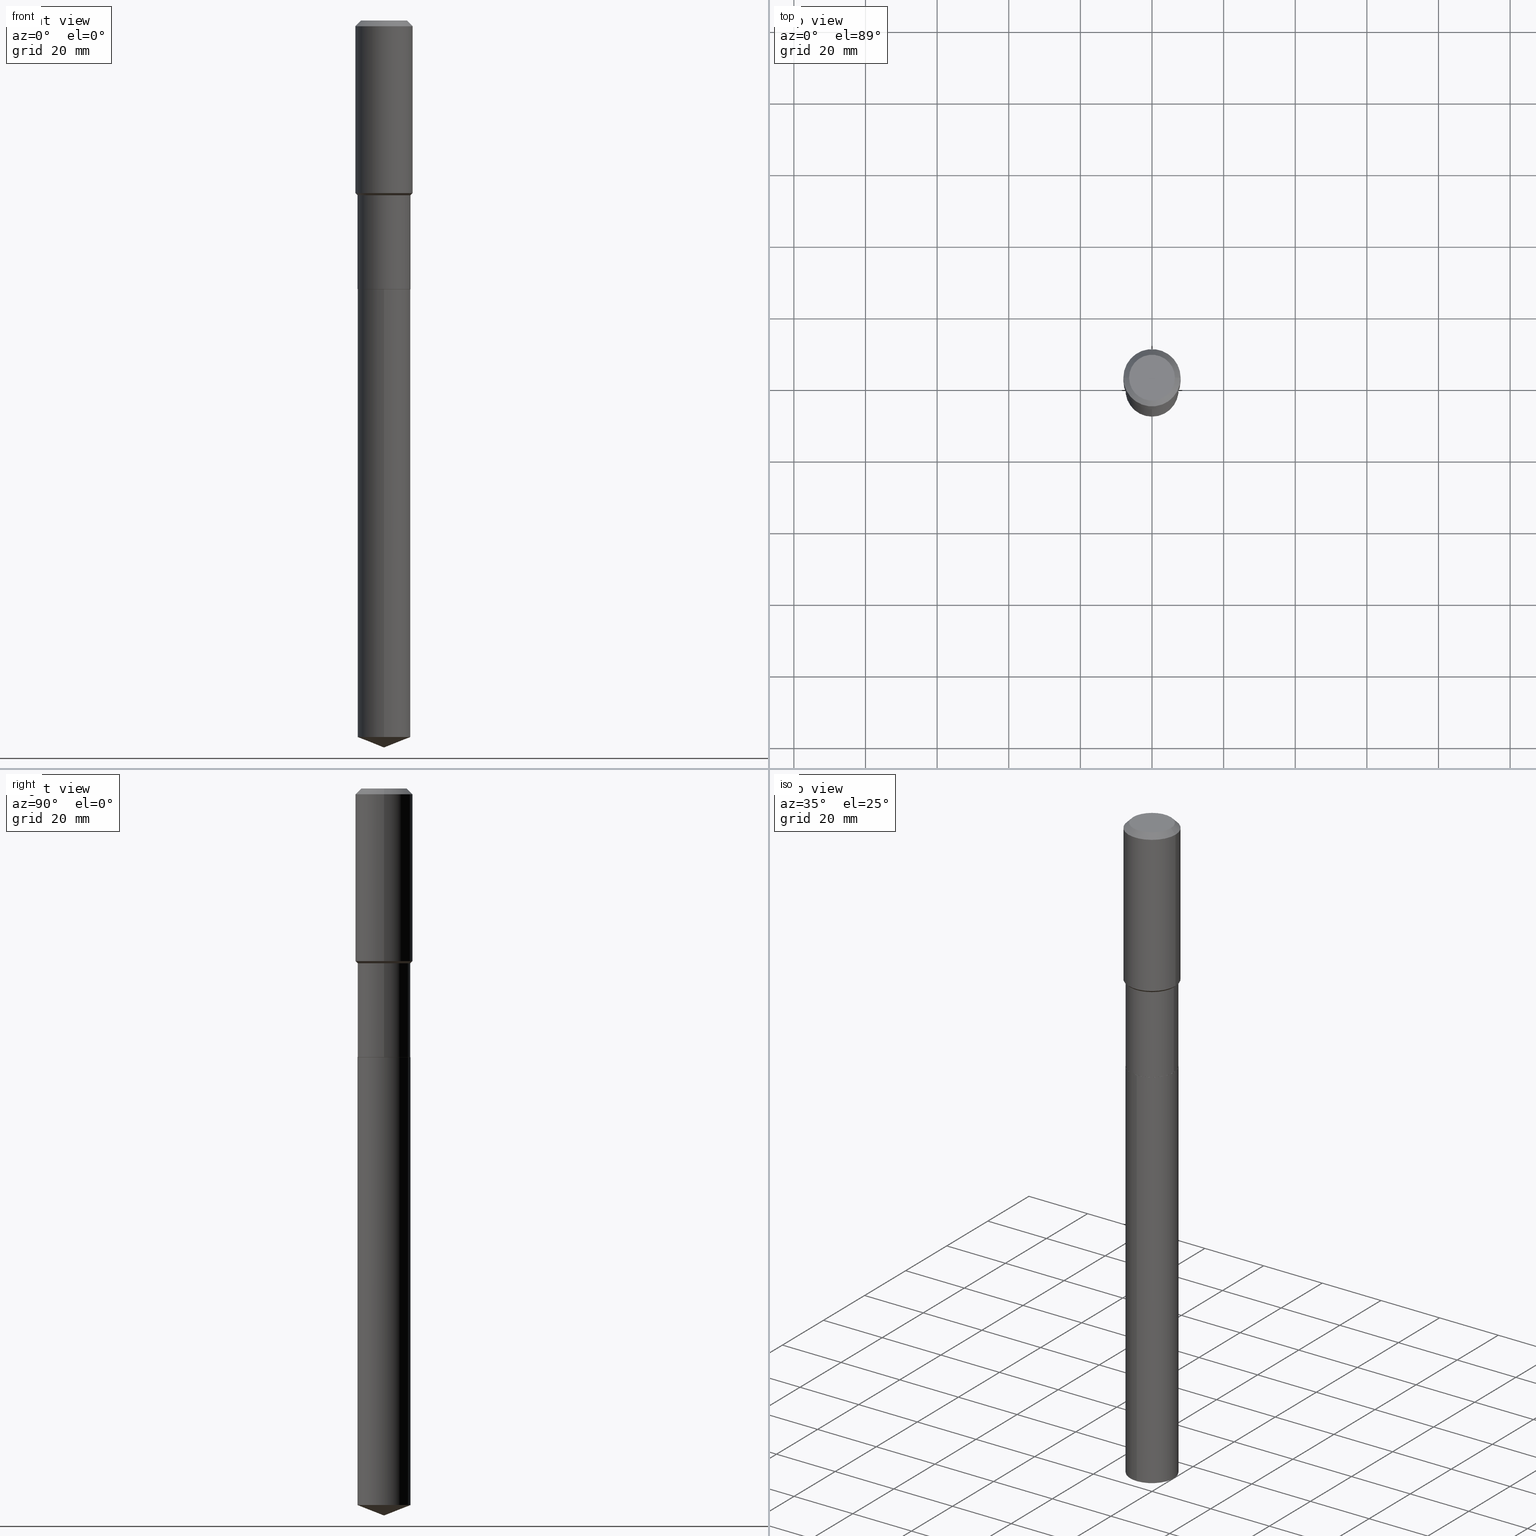
[diagram: canonical four-view strip — front | top / right | iso, engineering-drawing reading convention]
A machine part, canonical four-view strip (front | top / right | iso — engineering-drawing reading convention). The complete STEP part file that produces these views, byte-faithful:
ISO-10303-21;
HEADER;
FILE_DESCRIPTION (( 'STEP AP203' ),
    '1' );
FILE_NAME ('66704.STEP',
    '2024-04-25T04:06:00',
    ( '' ),
    ( '' ),
    'SwSTEP 2.0',
    'SolidWorks 2023',
    '' );
FILE_SCHEMA (( 'CONFIG_CONTROL_DESIGN' ));
ENDSEC;

DATA;
#1 = CYLINDRICAL_SURFACE ( 'NONE', #186, 0.3149500000000001743 ) ;
#2 = ORIENTED_EDGE ( 'NONE', *, *, #248, .F. ) ;
#3 = LINE ( 'NONE', #178, #341 ) ;
#4 = CLOSED_SHELL ( 'NONE', ( #244, #441, #363, #160, #337 ) ) ;
#5 = CONICAL_SURFACE ( 'NONE', #156, 0.3149500000000000077, 0.7853981633974452814 ) ;
#6 = LINE ( 'NONE', #376, #258 ) ;
#7 = EDGE_CURVE ( 'NONE', #151, #88, #171, .T. ) ;
#8 = DIRECTION ( 'NONE',  ( -2.445468806185136597E-29, 3.491481338843145583E-15, 1.000000000000000000 ) ) ;
#9 = ORIENTED_EDGE ( 'NONE', *, *, #306, .F. ) ;
#10 = ADVANCED_FACE ( 'NONE', ( #257 ), #154, .T. ) ;
#11 = ORIENTED_EDGE ( 'NONE', *, *, #400, .F. ) ;
#12 = VERTEX_POINT ( 'NONE', #334 ) ;
#13 = LENGTH_MEASURE_WITH_UNIT ( LENGTH_MEASURE( 0.02539999999999999897 ), #202 );
#14 = ORIENTED_EDGE ( 'NONE', *, *, #288, .F. ) ;
#15 = EDGE_CURVE ( 'NONE', #418, #174, #483, .T. ) ;
#16 = DATE_AND_TIME ( #57, #475 ) ;
#17 = CIRCLE ( 'NONE', #373, 0.2913499999999999979 ) ;
#18 = CARTESIAN_POINT ( 'NONE',  ( -2.034486176143821442E-15, -0.2913500000000103229, -2.952699999999999214 ) ) ;
#19 = CIRCLE ( 'NONE', #194, 0.2913499999999999979 ) ;
#20 = ORIENTED_EDGE ( 'NONE', *, *, #224, .T. ) ;
#21 = CARTESIAN_POINT ( 'NONE',  ( 0.000000000000000000, 0.000000000000000000, 0.000000000000000000 ) ) ;
#22 = DIRECTION ( 'NONE',  ( 1.000000000000000000, -6.982962677686269077E-15, 0.000000000000000000 ) ) ;
#23 = ADVANCED_BREP_SHAPE_REPRESENTATION ( '66704', ( #410, #81, #264 ), #30 ) ;
#24 =( NAMED_UNIT ( * ) PLANE_ANGLE_UNIT ( ) SI_UNIT ( $, .RADIAN. ) );
#25 = DIRECTION ( 'NONE',  ( -2.445468806185136597E-29, 3.491481338843145583E-15, 1.000000000000000000 ) ) ;
#26 = CALENDAR_DATE ( 2024, 25, 4 ) ;
#27 = EDGE_CURVE ( 'NONE', #308, #192, #412, .T. ) ;
#28 = DIRECTION ( 'NONE',  ( -2.445468806185136597E-29, 3.491481338843145583E-15, 1.000000000000000000 ) ) ;
#29 = AXIS2_PLACEMENT_3D ( 'NONE', #405, #489, #482 ) ;
#30 =( GEOMETRIC_REPRESENTATION_CONTEXT ( 3 ) GLOBAL_UNCERTAINTY_ASSIGNED_CONTEXT ( ( #384 ) ) GLOBAL_UNIT_ASSIGNED_CONTEXT ( ( #471, #24, #240 ) ) REPRESENTATION_CONTEXT ( 'NONE', 'WORKASPACE' ) );
#31 = CARTESIAN_POINT ( 'NONE',  ( 4.696522842278555874E-29, -6.705389911248262631E-15, -1.920500000000000540 ) ) ;
#32 = ORIENTED_EDGE ( 'NONE', *, *, #182, .F. ) ;
#33 = LINE ( 'NONE', #141, #155 ) ;
#34 = FACE_OUTER_BOUND ( 'NONE', #332, .T. ) ;
#35 = APPROVAL_PERSON_ORGANIZATION ( #232, #116, #346 ) ;
#36 = CARTESIAN_POINT ( 'NONE',  ( 0.000000000000000000, 0.000000000000000000, 0.000000000000000000 ) ) ;
#37 = CALENDAR_DATE ( 2024, 25, 4 ) ;
#38 = DIRECTION ( 'NONE',  ( -6.982962677686265922E-15, -1.000000000000000000, 3.750606478344620614E-15 ) ) ;
#39 = CARTESIAN_POINT ( 'NONE',  ( 7.220735744022853640E-29, -1.030929694920215659E-14, -2.952700000000000546 ) ) ;
#40 = APPROVAL ( #89, 'UNSPECIFIED' ) ;
#41 = VECTOR ( 'NONE', #409, 39.37007874015748143 ) ;
#42 = EDGE_CURVE ( 'NONE', #276, #462, #188, .T. ) ;
#43 = CARTESIAN_POINT ( 'NONE',  ( -2.034486176143821442E-15, -0.2913500000000103229, -2.952699999999999214 ) ) ;
#44 = EDGE_CURVE ( 'NONE', #313, #12, #109, .T. ) ;
#45 = EDGE_LOOP ( 'NONE', ( #268, #353, #486, #250 ) ) ;
#46 = DIRECTION ( 'NONE',  ( 1.000000000000000000, -6.982962677686265922E-15, 4.876176775795935793E-29 ) ) ;
#47 = EDGE_LOOP ( 'NONE', ( #158, #226, #422, #311 ) ) ;
#48 = CC_DESIGN_APPROVAL ( #116, ( #126 ) ) ;
#49 = ORIENTED_EDGE ( 'NONE', *, *, #252, .F. ) ;
#50 = ORIENTED_EDGE ( 'NONE', *, *, #177, .F. ) ;
#51 = CARTESIAN_POINT ( 'NONE',  ( -0.2913499999999998313, -6.436304299253447379E-15, -1.920500000000000540 ) ) ;
#52 = DIRECTION ( 'NONE',  ( -2.445478870628142678E-29, 3.491466925987928451E-15, 1.000000000000000000 ) ) ;
#53 = CONICAL_SURFACE ( 'NONE', #474, 0.2908499999999999974, 0.7853981633972775267 ) ;
#54 = ADVANCED_FACE ( 'NONE', ( #452 ), #90, .T. ) ;
#55 = CARTESIAN_POINT ( 'NONE',  ( -0.2908499999999999974, -8.240034175069792837E-15, -2.952700000000000546 ) ) ;
#56 = APPROVAL_PERSON_ORGANIZATION ( #490, #233, #299 ) ;
#57 = CALENDAR_DATE ( 2024, 25, 4 ) ;
#58 = DIRECTION ( 'NONE',  ( 2.438088387897960049E-29, -3.491481338843145188E-15, -1.000000000000000000 ) ) ;
#59 = ORIENTED_EDGE ( 'NONE', *, *, #461, .F. ) ;
#60 = PERSON_AND_ORGANIZATION ( #76, #222 ) ;
#61 = DIRECTION ( 'NONE',  ( 1.000000000000000000, -6.982962677686266711E-15, 0.000000000000000000 ) ) ;
#62 = DIRECTION ( 'NONE',  ( -2.445468806185136597E-29, 3.491481338843145583E-15, 1.000000000000000000 ) ) ;
#63 = VECTOR ( 'NONE', #417, 39.37007874015748854 ) ;
#64 = CARTESIAN_POINT ( 'NONE',  ( 0.000000000000000000, 0.000000000000000000, 0.000000000000000000 ) ) ;
#65 = DIRECTION ( 'NONE',  ( 1.000000000000000000, -6.982962677686267499E-15, 0.000000000000000000 ) ) ;
#66 = FACE_OUTER_BOUND ( 'NONE', #164, .T. ) ;
#67 = CIRCLE ( 'NONE', #105, 0.3149500000000000077 ) ;
#68 = DIRECTION ( 'NONE',  ( -2.445478870628142678E-29, 3.491466925987928451E-15, 1.000000000000000000 ) ) ;
#69 = FACE_OUTER_BOUND ( 'NONE', #85, .T. ) ;
#70 = DIRECTION ( 'NONE',  ( -2.445478870628142678E-29, 3.491466925987928451E-15, 1.000000000000000000 ) ) ;
#71 = CIRCLE ( 'NONE', #440, 0.2913499999999998313 ) ;
#72 = ORIENTED_EDGE ( 'NONE', *, *, #406, .T. ) ;
#73 = CARTESIAN_POINT ( 'NONE',  ( 0.3149500000000000077, -2.419212504871020909E-15, -0.06299000000000036514 ) ) ;
#74 = APPLICATION_CONTEXT ( 'configuration controlled 3d designs of mechanical parts and assemblies' ) ;
#75 = ORIENTED_EDGE ( 'NONE', *, *, #349, .T. ) ;
#76 = PERSON ( 'UNSPECIFIED', 'UNSPECIFIED', 'UNSPECIFIED', ('UNSPECIFIED'), ('UNSPECIFIED'), ('UNSPECIFIED') ) ;
#77 = CARTESIAN_POINT ( 'NONE',  ( 4.696522842278555874E-29, -6.705389911248262631E-15, -1.920500000000000540 ) ) ;
#78 = EDGE_LOOP ( 'NONE', ( #153, #112 ) ) ;
#79 = CIRCLE ( 'NONE', #358, 0.2913499999999999979 ) ;
#80 = VERTEX_POINT ( 'NONE', #152 ) ;
#81 = MANIFOLD_SOLID_BREP ( 'Body-Move/Copy2[2]', #372 ) ;
#82 = EDGE_CURVE ( 'NONE', #428, #308, #228, .T. ) ;
#83 = PERSON_AND_ORGANIZATION_ROLE ( 'design_owner' ) ;
#84 = CARTESIAN_POINT ( 'NONE',  ( 0.2519600000000000173, -2.054606664725195058E-15, 3.855188123729206640E-18 ) ) ;
#85 = EDGE_LOOP ( 'NONE', ( #204, #282 ) ) ;
#86 = DATE_AND_TIME ( #433, #92 ) ;
#87 = DIRECTION ( 'NONE',  ( -2.445478870628142678E-29, 3.491466925987928451E-15, 1.000000000000000000 ) ) ;
#88 = VERTEX_POINT ( 'NONE', #73 ) ;
#89 = APPROVAL_STATUS ( 'not_yet_approved' ) ;
#90 = CONICAL_SURFACE ( 'NONE', #179, 0.2913499999999998313, 0.7853981633974504994 ) ;
#91 = CARTESIAN_POINT ( 'NONE',  ( 7.219513009619761960E-29, -1.030755120853273430E-14, -2.952200000000000379 ) ) ;
#92 = LOCAL_TIME ( 0, 6, 0.000000000000000000, #277 ) ;
#93 = ORIENTED_EDGE ( 'NONE', *, *, #248, .T. ) ;
#94 = EDGE_CURVE ( 'NONE', #110, #151, #377, .T. ) ;
#95 = DIRECTION ( 'NONE',  ( 1.000000000000000000, -6.982962677686269077E-15, 0.000000000000000000 ) ) ;
#96 = ADVANCED_FACE ( 'NONE', ( #166 ), #53, .T. ) ;
#97 = PERSON_AND_ORGANIZATION_ROLE ( 'classification_officer' ) ;
#98 = LINE ( 'NONE', #243, #129 ) ;
#99 = ORIENTED_EDGE ( 'NONE', *, *, #27, .T. ) ;
#100 = FACE_OUTER_BOUND ( 'NONE', #395, .T. ) ;
#101 = CIRCLE ( 'NONE', #323, 0.2913499999999998313 ) ;
#102 = DIRECTION ( 'NONE',  ( 6.611014441532074478E-15, 0.9304175679820283484, 0.3665012267242876431 ) ) ;
#103 = DIRECTION ( 'NONE',  ( 1.000000000000000000, -6.982962677686264344E-15, 0.000000000000000000 ) ) ;
#104 = LINE ( 'NONE', #443, #41 ) ;
#105 = AXIS2_PLACEMENT_3D ( 'NONE', #394, #387, #61 ) ;
#106 = LOCAL_TIME ( 0, 6, 0.000000000000000000, #425 ) ;
#107 = DIRECTION ( 'NONE',  ( 1.000000000000000000, -6.982962677686265922E-15, 4.876176775795935232E-29 ) ) ;
#108 = DIRECTION ( 'NONE',  ( -6.982962677686265133E-15, -1.000000000000000000, 3.498627837349972274E-15 ) ) ;
#109 = LINE ( 'NONE', #414, #473 ) ;
#110 = VERTEX_POINT ( 'NONE', #430 ) ;
#111 = CARTESIAN_POINT ( 'NONE',  ( 1.954445224738545131E-28, -2.790423793286332723E-14, -7.992100000000000648 ) ) ;
#112 = ORIENTED_EDGE ( 'NONE', *, *, #224, .F. ) ;
#113 = DIRECTION ( 'NONE',  ( -2.445468806185136877E-29, 3.491481338843145188E-15, 1.000000000000000000 ) ) ;
#114 = ORIENTED_EDGE ( 'NONE', *, *, #371, .F. ) ;
#115 = ORIENTED_EDGE ( 'NONE', *, *, #182, .T. ) ;
#116 = APPROVAL ( #317, 'UNSPECIFIED' ) ;
#117 = AXIS2_PLACEMENT_3D ( 'NONE', #290, #52, #436 ) ;
#118 = CYLINDRICAL_SURFACE ( 'NONE', #207, 0.2913499999999999424 ) ;
#119 = APPLICATION_CONTEXT ( 'configuration controlled 3d designs of mechanical parts and assemblies' ) ;
#120 = ORIENTED_EDGE ( 'NONE', *, *, #252, .T. ) ;
#121 = ADVANCED_FACE ( 'NONE', ( #133 ), #357, .F. ) ;
#122 = ADVANCED_FACE ( 'NONE', ( #427 ), #205, .T. ) ;
#123 = PERSON_AND_ORGANIZATION_ROLE ( 'creator' ) ;
#124 = DIRECTION ( 'NONE',  ( -6.982962677686265922E-15, -1.000000000000000000, 3.750606478344620614E-15 ) ) ;
#125 = VERTEX_POINT ( 'NONE', #281 ) ;
#126 = PRODUCT_DEFINITION ( 'UNKNOWN', '', #305, #197 ) ;
#127 = CARTESIAN_POINT ( 'NONE',  ( 0.000000000000000000, 0.000000000000000000, 0.000000000000000000 ) ) ;
#128 = DIRECTION ( 'NONE',  ( -2.445468806185136597E-29, 3.491481338843145583E-15, 1.000000000000000000 ) ) ;
#129 = VECTOR ( 'NONE', #234, 39.37007874015748143 ) ;
#130 = DIRECTION ( 'NONE',  ( -2.445468806185136597E-29, 3.491481338843145583E-15, 1.000000000000000000 ) ) ;
#131 = ORIENTED_EDGE ( 'NONE', *, *, #212, .F. ) ;
#132 = PERSON_AND_ORGANIZATION_ROLE ( 'design_supplier' ) ;
#133 = FACE_OUTER_BOUND ( 'NONE', #385, .T. ) ;
#134 = DIRECTION ( 'NONE',  ( 0.7071067811864267805, -2.468850131080992517E-15, 0.7071067811866682540 ) ) ;
#135 = EDGE_LOOP ( 'NONE', ( #420, #139, #114 ) ) ;
#136 = DIRECTION ( 'NONE',  ( -2.445468806185136597E-29, 3.491481338843145583E-15, 1.000000000000000000 ) ) ;
#137 = CIRCLE ( 'NONE', #413, 0.3149500000000002298 ) ;
#138 = DIRECTION ( 'NONE',  ( -2.445468806185136597E-29, 3.491481338843145583E-15, 1.000000000000000000 ) ) ;
#139 = ORIENTED_EDGE ( 'NONE', *, *, #400, .T. ) ;
#140 = APPROVAL_STATUS ( 'not_yet_approved' ) ;
#141 = CARTESIAN_POINT ( 'NONE',  ( 0.3149500000000000077, -2.380642253931875190E-15, -0.06299000000000036514 ) ) ;
#142 = CARTESIAN_POINT ( 'NONE',  ( -0.2913499999999999979, -6.436304299253446590E-15, -2.952200000000000379 ) ) ;
#143 = CALENDAR_DATE ( 2024, 25, 4 ) ;
#144 = CARTESIAN_POINT ( 'NONE',  ( 7.220735744022853640E-29, -1.030929694920215659E-14, -2.952700000000000546 ) ) ;
#145 = AXIS2_PLACEMENT_3D ( 'NONE', #301, #445, #438 ) ;
#146 = AXIS2_PLACEMENT_3D ( 'NONE', #379, #70, #108 ) ;
#147 = CARTESIAN_POINT ( 'NONE',  ( 4.696522842278555874E-29, -6.705389911248262631E-15, -1.920500000000000540 ) ) ;
#148 = PRODUCT_RELATED_PRODUCT_CATEGORY ( 'detail', '', ( #351 ) ) ;
#149 = FACE_OUTER_BOUND ( 'NONE', #78, .T. ) ;
#150 = DIRECTION ( 'NONE',  ( -2.445478870628142678E-29, 3.491466925987928451E-15, 1.000000000000000000 ) ) ;
#151 = VERTEX_POINT ( 'NONE', #173 ) ;
#152 = CARTESIAN_POINT ( 'NONE',  ( 2.070166260637244753E-15, 0.2913499999999896173, -2.952700000000001435 ) ) ;
#153 = ORIENTED_EDGE ( 'NONE', *, *, #15, .F. ) ;
#154 = CONICAL_SURFACE ( 'NONE', #302, 0.2913499999999998313, 0.7853981633974504994 ) ;
#155 = VECTOR ( 'NONE', #176, 39.37007874015748143 ) ;
#156 = AXIS2_PLACEMENT_3D ( 'NONE', #298, #215, #293 ) ;
#157 = ORIENTED_EDGE ( 'NONE', *, *, #214, .F. ) ;
#158 = ORIENTED_EDGE ( 'NONE', *, *, #439, .F. ) ;
#159 = DIRECTION ( 'NONE',  ( 0.000000000000000000, 0.000000000000000000, 1.000000000000000000 ) ) ;
#160 = ADVANCED_FACE ( 'NONE', ( #348 ), #169, .T. ) ;
#161 = ORIENTED_EDGE ( 'NONE', *, *, #42, .F. ) ;
#162 = AXIS2_PLACEMENT_3D ( 'NONE', #39, #398, #213 ) ;
#163 = CARTESIAN_POINT ( 'NONE',  ( 1.926382458395024925E-28, -2.750349432149039960E-14, -7.877334182929589090 ) ) ;
#164 = EDGE_LOOP ( 'NONE', ( #314, #481, #339, #157 ) ) ;
#165 = APPROVAL_DATE_TIME ( #16, #116 ) ;
#166 = FACE_OUTER_BOUND ( 'NONE', #45, .T. ) ;
#167 = CARTESIAN_POINT ( 'NONE',  ( 1.540400801016026329E-30, -2.199284095337310135E-16, -0.06299000000000036514 ) ) ;
#168 = DATE_AND_TIME ( #26, #106 ) ;
#169 = CYLINDRICAL_SURFACE ( 'NONE', #218, 0.2913499999999999979 ) ;
#170 = MECHANICAL_CONTEXT ( 'NONE', #74, 'mechanical' ) ;
#171 = CIRCLE ( 'NONE', #366, 0.3149500000000000077 ) ;
#172 = FACE_OUTER_BOUND ( 'NONE', #460, .T. ) ;
#173 = CARTESIAN_POINT ( 'NONE',  ( -0.3149500000000000077, -1.183605334316210605E-15, -0.06299000000000036514 ) ) ;
#174 = VERTEX_POINT ( 'NONE', #55 ) ;
#175 = CC_DESIGN_PERSON_AND_ORGANIZATION_ASSIGNMENT ( #60, #324, ( #305 ) ) ;
#176 = DIRECTION ( 'NONE',  ( 0.7071067811865453523, -7.319954787623248157E-15, -0.7071067811865496822 ) ) ;
#177 = EDGE_CURVE ( 'NONE', #110, #195, #193, .T. ) ;
#178 = CARTESIAN_POINT ( 'NONE',  ( 1.954451220311812961E-28, -2.790415281918812321E-14, -7.992100000000000648 ) ) ;
#179 = AXIS2_PLACEMENT_3D ( 'NONE', #77, #8, #340 ) ;
#180 = APPROVAL_PERSON_ORGANIZATION ( #469, #40, #286 ) ;
#181 = CARTESIAN_POINT ( 'NONE',  ( 7.220735744022853640E-29, -1.030929694920215659E-14, -2.952700000000000546 ) ) ;
#182 = EDGE_CURVE ( 'NONE', #276, #313, #238, .T. ) ;
#183 = EDGE_LOOP ( 'NONE', ( #378, #120, #99, #343 ) ) ;
#184 = DIRECTION ( 'NONE',  ( -6.982962677686265922E-15, -1.000000000000000000, 3.750606478344620614E-15 ) ) ;
#185 = DIRECTION ( 'NONE',  ( -2.445468806185136597E-29, 3.491481338843145583E-15, 1.000000000000000000 ) ) ;
#186 = AXIS2_PLACEMENT_3D ( 'NONE', #64, #185, #254 ) ;
#187 = CARTESIAN_POINT ( 'NONE',  ( -0.3149500000000002298, -4.385136605375126945E-15, -1.896900000000000253 ) ) ;
#188 = LINE ( 'NONE', #307, #335 ) ;
#189 = DIRECTION ( 'NONE',  ( -2.445468806185136877E-29, 3.491481338843145188E-15, 1.000000000000000000 ) ) ;
#190 = ORIENTED_EDGE ( 'NONE', *, *, #461, .T. ) ;
#191 = CARTESIAN_POINT ( 'NONE',  ( 2.070166260637244358E-15, 0.2913499999999725198, -7.877334182929589979 ) ) ;
#192 = VERTEX_POINT ( 'NONE', #18 ) ;
#193 = CIRCLE ( 'NONE', #273, 0.2519600000000000173 ) ;
#194 = AXIS2_PLACEMENT_3D ( 'NONE', #303, #249, #65 ) ;
#195 = VERTEX_POINT ( 'NONE', #84 ) ;
#196 = ADVANCED_FACE ( 'NONE', ( #360 ), #118, .T. ) ;
#197 = DESIGN_CONTEXT ( 'detailed design', #119, 'design' ) ;
#198 = EDGE_LOOP ( 'NONE', ( #161, #115, #375, #131 ) ) ;
#199 = LINE ( 'NONE', #280, #485 ) ;
#200 = CARTESIAN_POINT ( 'NONE',  ( -9.427742298522569579E-47, 1.346031739168368629E-32, 3.855188123715871501E-18 ) ) ;
#201 = VECTOR ( 'NONE', #325, 39.37007874015748143 ) ;
#202 =( LENGTH_UNIT ( ) NAMED_UNIT ( * ) SI_UNIT ( $, .METRE. ) );
#203 = DIRECTION ( 'NONE',  ( -2.445468806185136597E-29, 3.491481338843145583E-15, 1.000000000000000000 ) ) ;
#204 = ORIENTED_EDGE ( 'NONE', *, *, #336, .T. ) ;
#205 = CYLINDRICAL_SURFACE ( 'NONE', #397, 0.2913499999999999424 ) ;
#206 = CARTESIAN_POINT ( 'NONE',  ( 7.220735744022853640E-29, -1.030929694920215659E-14, -2.952700000000000546 ) ) ;
#207 = AXIS2_PLACEMENT_3D ( 'NONE', #209, #203, #352 ) ;
#208 = EDGE_CURVE ( 'NONE', #80, #192, #421, .T. ) ;
#209 = CARTESIAN_POINT ( 'NONE',  ( 0.000000000000000000, 0.000000000000000000, 0.000000000000000000 ) ) ;
#210 = CC_DESIGN_APPROVAL ( #233, ( #447 ) ) ;
#211 = ORIENTED_EDGE ( 'NONE', *, *, #488, .F. ) ;
#212 = EDGE_CURVE ( 'NONE', #462, #12, #101, .T. ) ;
#213 = DIRECTION ( 'NONE',  ( 6.982962677686265922E-15, 1.000000000000000000, -3.491466925987928451E-15 ) ) ;
#214 = EDGE_CURVE ( 'NONE', #125, #88, #98, .T. ) ;
#215 = DIRECTION ( 'NONE',  ( 2.445468806185136597E-29, -3.491481338843145583E-15, -1.000000000000000000 ) ) ;
#216 = EDGE_CURVE ( 'NONE', #88, #151, #67, .T. ) ;
#217 = DIRECTION ( 'NONE',  ( 0.7071067811865490160, -2.468850131082273232E-15, 0.7071067811865459074 ) ) ;
#218 = AXIS2_PLACEMENT_3D ( 'NONE', #237, #87, #468 ) ;
#219 = DIRECTION ( 'NONE',  ( -2.445468806185136597E-29, 3.491481338843145583E-15, 1.000000000000000000 ) ) ;
#220 = PLANE ( 'NONE',  #162 ) ;
#221 = CIRCLE ( 'NONE', #316, 0.2519600000000000173 ) ;
#222 = ORGANIZATION ( 'UNSPECIFIED', 'UNSPECIFIED', '' ) ;
#223 = LINE ( 'NONE', #312, #297 ) ;
#224 = EDGE_CURVE ( 'NONE', #174, #418, #455, .T. ) ;
#225 = EDGE_LOOP ( 'NONE', ( #2, #437, #466, #315 ) ) ;
#226 = ORIENTED_EDGE ( 'NONE', *, *, #306, .T. ) ;
#227 = CARTESIAN_POINT ( 'NONE',  ( 4.696522842278555874E-29, -6.705389911248262631E-15, -1.920500000000000540 ) ) ;
#228 = LINE ( 'NONE', #111, #63 ) ;
#229 = ORIENTED_EDGE ( 'NONE', *, *, #82, .T. ) ;
#230 = LOCAL_TIME ( 0, 6, 0.000000000000000000, #479 ) ;
#231 = ORIENTED_EDGE ( 'NONE', *, *, #94, .T. ) ;
#232 = PERSON_AND_ORGANIZATION ( #76, #222 ) ;
#233 = APPROVAL ( #140, 'UNSPECIFIED' ) ;
#234 = DIRECTION ( 'NONE',  ( -2.445468806185136877E-29, 3.491481338843145188E-15, 1.000000000000000000 ) ) ;
#235 = ORIENTED_EDGE ( 'NONE', *, *, #212, .T. ) ;
#236 = APPROVAL_DATE_TIME ( #86, #40 ) ;
#237 = CARTESIAN_POINT ( 'NONE',  ( 7.220735744022853640E-29, -1.030929694920215659E-14, -2.952700000000000546 ) ) ;
#238 = CIRCLE ( 'NONE', #295, 0.2913499999999999979 ) ;
#239 = AXIS2_PLACEMENT_3D ( 'NONE', #269, #262, #46 ) ;
#240 =( NAMED_UNIT ( * ) SI_UNIT ( $, .STERADIAN. ) SOLID_ANGLE_UNIT ( ) );
#241 = DIRECTION ( 'NONE',  ( -2.445478870628142678E-29, 3.491466925987928451E-15, 1.000000000000000000 ) ) ;
#242 = DIRECTION ( 'NONE',  ( -2.445468806185136597E-29, 3.491481338843145583E-15, 1.000000000000000000 ) ) ;
#243 = CARTESIAN_POINT ( 'NONE',  ( 0.3149500000000001743, -2.199284095337290660E-15, 1.535751875536930690E-29 ) ) ;
#244 = ADVANCED_FACE ( 'NONE', ( #172 ), #477, .T. ) ;
#245 = ORIENTED_EDGE ( 'NONE', *, *, #319, .T. ) ;
#246 = DIRECTION ( 'NONE',  ( -0.7071067811865490160, 7.493145998870358893E-15, 0.7071067811865459074 ) ) ;
#247 = DIRECTION ( 'NONE',  ( 1.000000000000000000, -6.982962677686269077E-15, 0.000000000000000000 ) ) ;
#248 = EDGE_CURVE ( 'NONE', #195, #110, #221, .T. ) ;
#249 = DIRECTION ( 'NONE',  ( -2.445468806185136597E-29, 3.491481338843145583E-15, 1.000000000000000000 ) ) ;
#250 = ORIENTED_EDGE ( 'NONE', *, *, #349, .F. ) ;
#251 = DIRECTION ( 'NONE',  ( 1.000000000000000000, -6.982962677686269077E-15, 0.000000000000000000 ) ) ;
#252 = EDGE_CURVE ( 'NONE', #424, #308, #17, .T. ) ;
#253 = COORDINATED_UNIVERSAL_TIME_OFFSET ( 5, 0, .BEHIND. ) ;
#254 = DIRECTION ( 'NONE',  ( 1.000000000000000000, -6.982962677686265922E-15, 4.876176775795935232E-29 ) ) ;
#255 = APPROVAL_DATE_TIME ( #487, #233 ) ;
#256 = DIRECTION ( 'NONE',  ( 1.000000000000000000, -6.982962677686264344E-15, 0.000000000000000000 ) ) ;
#257 = FACE_OUTER_BOUND ( 'NONE', #271, .T. ) ;
#258 = VECTOR ( 'NONE', #113, 39.37007874015748143 ) ;
#259 = DIRECTION ( 'NONE',  ( -2.445478870628142678E-29, 3.491466925987928451E-15, 1.000000000000000000 ) ) ;
#260 = ADVANCED_FACE ( 'NONE', ( #278 ), #1, .T. ) ;
#261 = ADVANCED_FACE ( 'NONE', ( #66 ), #480, .T. ) ;
#262 = DIRECTION ( 'NONE',  ( -2.438088387897960049E-29, 3.491481338843145188E-15, 1.000000000000000000 ) ) ;
#263 = DIRECTION ( 'NONE',  ( -2.445468806185136597E-29, 3.491481338843145583E-15, 1.000000000000000000 ) ) ;
#264 = AXIS2_PLACEMENT_3D ( 'NONE', #21, #159, #429 ) ;
#265 = ORIENTED_EDGE ( 'NONE', *, *, #177, .T. ) ;
#266 = PRODUCT_DEFINITION_SHAPE ( 'NONE', 'NONE',  #126 ) ;
#267 = CARTESIAN_POINT ( 'NONE',  ( 1.954451168194718010E-28, -2.790415281918812321E-14, -7.992100000000000648 ) ) ;
#268 = ORIENTED_EDGE ( 'NONE', *, *, #15, .T. ) ;
#269 = CARTESIAN_POINT ( 'NONE',  ( 7.220735744022853640E-29, -1.030929694920215659E-14, -2.952700000000000546 ) ) ;
#270 = EDGE_LOOP ( 'NONE', ( #211, #235, #245, #9 ) ) ;
#271 = EDGE_LOOP ( 'NONE', ( #190, #279, #458, #329 ) ) ;
#272 = VECTOR ( 'NONE', #150, 39.37007874015748143 ) ;
#273 = AXIS2_PLACEMENT_3D ( 'NONE', #200, #326, #392 ) ;
#274 = APPLICATION_PROTOCOL_DEFINITION ( 'international standard', 'config_control_design', 1994, #74 ) ;
#275 = DIRECTION ( 'NONE',  ( 1.000000000000000000, -6.982962677686266711E-15, 4.876115136096691995E-29 ) ) ;
#276 = VERTEX_POINT ( 'NONE', #142 ) ;
#277 = COORDINATED_UNIVERSAL_TIME_OFFSET ( 5, 0, .BEHIND. ) ;
#278 = FACE_OUTER_BOUND ( 'NONE', #47, .T. ) ;
#279 = ORIENTED_EDGE ( 'NONE', *, *, #488, .T. ) ;
#280 = CARTESIAN_POINT ( 'NONE',  ( -0.2913499999999998313, -4.635223650611211544E-15, -1.920500000000000540 ) ) ;
#281 = CARTESIAN_POINT ( 'NONE',  ( 0.3149500000000002298, -8.822275046988854378E-15, -1.896900000000000253 ) ) ;
#282 = ORIENTED_EDGE ( 'NONE', *, *, #208, .T. ) ;
#283 = AXIS2_PLACEMENT_3D ( 'NONE', #365, #263, #457 ) ;
#284 = CIRCLE ( 'NONE', #463, 0.3149500000000002298 ) ;
#285 = CC_DESIGN_APPROVAL ( #40, ( #305 ) ) ;
#286 = APPROVAL_ROLE ( '' ) ;
#287 = DIRECTION ( 'NONE',  ( -2.445468806185136597E-29, 3.491481338843145583E-15, 1.000000000000000000 ) ) ;
#288 = EDGE_CURVE ( 'NONE', #174, #276, #104, .T. ) ;
#289 = SECURITY_CLASSIFICATION_LEVEL ( 'unclassified' ) ;
#290 = CARTESIAN_POINT ( 'NONE',  ( 7.220735744022853640E-29, -1.030929694920215659E-14, -2.952700000000000546 ) ) ;
#291 = EDGE_LOOP ( 'NONE', ( #11, #229, #49 ) ) ;
#292 = DATE_AND_TIME ( #143, #230 ) ;
#293 = DIRECTION ( 'NONE',  ( -1.000000000000000000, 6.982962677686266711E-15, 0.000000000000000000 ) ) ;
#294 = ORIENTED_EDGE ( 'NONE', *, *, #27, .F. ) ;
#295 = AXIS2_PLACEMENT_3D ( 'NONE', #91, #287, #434 ) ;
#296 = CC_DESIGN_PERSON_AND_ORGANIZATION_ASSIGNMENT ( #356, #132, ( #305 ) ) ;
#297 = VECTOR ( 'NONE', #411, 39.37007874015748143 ) ;
#298 = CARTESIAN_POINT ( 'NONE',  ( 1.540400801016026329E-30, -2.199284095337310135E-16, -0.06299000000000036514 ) ) ;
#299 = APPROVAL_ROLE ( '' ) ;
#300 = CARTESIAN_POINT ( 'NONE',  ( 0.2913499999999998313, -8.739876087392156255E-15, -1.920500000000000540 ) ) ;
#301 = CARTESIAN_POINT ( 'NONE',  ( -7.673421372935505662E-28, 1.095551324187746195E-13, 31.37797874015748079 ) ) ;
#302 = AXIS2_PLACEMENT_3D ( 'NONE', #147, #138, #403 ) ;
#303 = CARTESIAN_POINT ( 'NONE',  ( 7.219513009619761960E-29, -1.030755120853273430E-14, -2.952200000000000379 ) ) ;
#304 = VECTOR ( 'NONE', #134, 39.37007874015748143 ) ;
#305 = PRODUCT_DEFINITION_FORMATION_WITH_SPECIFIED_SOURCE ( 'ANY', '', #351, .NOT_KNOWN. ) ;
#306 = EDGE_CURVE ( 'NONE', #453, #125, #284, .T. ) ;
#307 = CARTESIAN_POINT ( 'NONE',  ( -0.2913499999999999424, 2.070166260637051482E-15, -1.433131738545766370E-29 ) ) ;
#308 = VERTEX_POINT ( 'NONE', #401 ) ;
#309 = CONICAL_SURFACE ( 'NONE', #145, 99.94676754584088485, 1.195550537616122622 ) ;
#310 = LOCAL_TIME ( 0, 6, 0.000000000000000000, #253 ) ;
#311 = ORIENTED_EDGE ( 'NONE', *, *, #7, .F. ) ;
#312 = CARTESIAN_POINT ( 'NONE',  ( 2.070166260637124057E-15, 0.2913499999999896728, -2.952700000000001435 ) ) ;
#313 = VERTEX_POINT ( 'NONE', #361 ) ;
#314 = ORIENTED_EDGE ( 'NONE', *, *, #338, .T. ) ;
#315 = ORIENTED_EDGE ( 'NONE', *, *, #94, .F. ) ;
#316 = AXIS2_PLACEMENT_3D ( 'NONE', #396, #62, #275 ) ;
#317 = APPROVAL_STATUS ( 'not_yet_approved' ) ;
#318 = DIRECTION ( 'NONE',  ( -2.445478870628142678E-29, 3.491466925987928451E-15, 1.000000000000000000 ) ) ;
#319 = EDGE_CURVE ( 'NONE', #12, #125, #328, .T. ) ;
#320 = CARTESIAN_POINT ( 'NONE',  ( 7.220735744022853640E-29, -1.030929694920215659E-14, -2.952700000000000546 ) ) ;
#321 = EDGE_LOOP ( 'NONE', ( #72, #382, #59, #388 ) ) ;
#322 = CARTESIAN_POINT ( 'NONE',  ( 7.220735744022853640E-29, -1.030929694920215659E-14, -2.952700000000000546 ) ) ;
#323 = AXIS2_PLACEMENT_3D ( 'NONE', #31, #130, #95 ) ;
#324 = PERSON_AND_ORGANIZATION_ROLE ( 'creator' ) ;
#325 = DIRECTION ( 'NONE',  ( -0.7071067811865453523, 2.468850131082234184E-15, -0.7071067811865496822 ) ) ;
#326 = DIRECTION ( 'NONE',  ( -2.445468806185136597E-29, 3.491481338843145583E-15, 1.000000000000000000 ) ) ;
#327 = CC_DESIGN_PERSON_AND_ORGANIZATION_ASSIGNMENT ( #435, #97, ( #447 ) ) ;
#328 = LINE ( 'NONE', #300, #350 ) ;
#329 = ORIENTED_EDGE ( 'NONE', *, *, #319, .F. ) ;
#330 = DIRECTION ( 'NONE',  ( -2.445468806185136597E-29, 3.491481338843145583E-15, 1.000000000000000000 ) ) ;
#331 = FACE_OUTER_BOUND ( 'NONE', #291, .T. ) ;
#332 = EDGE_LOOP ( 'NONE', ( #342, #50, #231, #478 ) ) ;
#333 = FACE_OUTER_BOUND ( 'NONE', #225, .T. ) ;
#334 = CARTESIAN_POINT ( 'NONE',  ( 0.2913499999999998313, -8.739876087392156255E-15, -1.920500000000000540 ) ) ;
#335 = VECTOR ( 'NONE', #419, 39.37007874015748143 ) ;
#336 = EDGE_CURVE ( 'NONE', #192, #80, #446, .T. ) ;
#337 = ADVANCED_FACE ( 'NONE', ( #69 ), #220, .F. ) ;
#338 = EDGE_CURVE ( 'NONE', #125, #453, #137, .T. ) ;
#339 = ORIENTED_EDGE ( 'NONE', *, *, #216, .F. ) ;
#340 = DIRECTION ( 'NONE',  ( 1.000000000000000000, -6.982962677686269077E-15, 0.000000000000000000 ) ) ;
#341 = VECTOR ( 'NONE', #102, 39.37007874015748143 ) ;
#342 = ORIENTED_EDGE ( 'NONE', *, *, #390, .F. ) ;
#343 = ORIENTED_EDGE ( 'NONE', *, *, #208, .F. ) ;
#344 = DIRECTION ( 'NONE',  ( 1.000000000000000000, -6.982962677686269077E-15, 0.000000000000000000 ) ) ;
#345 = ORIENTED_EDGE ( 'NONE', *, *, #426, .T. ) ;
#346 = APPROVAL_ROLE ( '' ) ;
#347 = ADVANCED_FACE ( 'NONE', ( #34 ), #432, .T. ) ;
#348 = FACE_OUTER_BOUND ( 'NONE', #183, .T. ) ;
#349 = EDGE_CURVE ( 'NONE', #418, #313, #364, .T. ) ;
#350 = VECTOR ( 'NONE', #217, 39.37007874015748854 ) ;
#351 = PRODUCT ( '66704', '66704', '', ( #170 ) ) ;
#352 = DIRECTION ( 'NONE',  ( 1.000000000000000000, -6.982962677686265922E-15, 4.876176775795935232E-29 ) ) ;
#353 = ORIENTED_EDGE ( 'NONE', *, *, #288, .T. ) ;
#354 = CC_DESIGN_PERSON_AND_ORGANIZATION_ASSIGNMENT ( #467, #123, ( #126 ) ) ;
#355 = DIRECTION ( 'NONE',  ( -2.445468806185136597E-29, 3.491481338843145583E-15, 1.000000000000000000 ) ) ;
#356 = PERSON_AND_ORGANIZATION ( #76, #222 ) ;
#357 = PLANE ( 'NONE',  #367 ) ;
#358 = AXIS2_PLACEMENT_3D ( 'NONE', #370, #68, #38 ) ;
#359 = CONICAL_SURFACE ( 'NONE', #146, 99.94676754584088485, 1.195550537616122622 ) ;
#360 = FACE_OUTER_BOUND ( 'NONE', #198, .T. ) ;
#361 = CARTESIAN_POINT ( 'NONE',  ( 0.2913499999999999979, -1.234203738467662792E-14, -2.952200000000000379 ) ) ;
#362 = DATE_TIME_ROLE ( 'classification_date' ) ;
#363 = ADVANCED_FACE ( 'NONE', ( #331 ), #309, .T. ) ;
#364 = LINE ( 'NONE', #408, #304 ) ;
#365 = CARTESIAN_POINT ( 'NONE',  ( 7.220735744022853640E-29, -1.030929694920215659E-14, -2.952700000000000546 ) ) ;
#366 = AXIS2_PLACEMENT_3D ( 'NONE', #167, #128, #431 ) ;
#367 = AXIS2_PLACEMENT_3D ( 'NONE', #423, #58, #470 ) ;
#368 = CONICAL_SURFACE ( 'NONE', #456, 0.2908499999999999974, 0.7853981633972775267 ) ;
#369 = CARTESIAN_POINT ( 'NONE',  ( 4.638809778452586070E-29, -6.622990951651563719E-15, -1.896900000000000253 ) ) ;
#370 = CARTESIAN_POINT ( 'NONE',  ( 1.926382458395024925E-28, -2.750349432149039960E-14, -7.877334182929589090 ) ) ;
#371 = EDGE_CURVE ( 'NONE', #308, #424, #79, .T. ) ;
#372 = CLOSED_SHELL ( 'NONE', ( #96, #383, #261, #10, #122, #196, #54, #260, #347, #121, #454, #402 ) ) ;
#373 = AXIS2_PLACEMENT_3D ( 'NONE', #163, #318, #124 ) ;
#374 = CC_DESIGN_DATE_AND_TIME_ASSIGNMENT ( #168, #476, ( #126 ) ) ;
#375 = ORIENTED_EDGE ( 'NONE', *, *, #44, .T. ) ;
#376 = CARTESIAN_POINT ( 'NONE',  ( -0.3149500000000001743, 2.237854346276436774E-15, -1.549218606675783237E-29 ) ) ;
#377 = LINE ( 'NONE', #380, #201 ) ;
#378 = ORIENTED_EDGE ( 'NONE', *, *, #426, .F. ) ;
#379 = CARTESIAN_POINT ( 'NONE',  ( -7.673421372935505662E-28, 1.095551324187746195E-13, 31.37797874015748079 ) ) ;
#380 = CARTESIAN_POINT ( 'NONE',  ( -0.3149500000000000077, 1.979355685803558833E-15, -0.06299000000000036514 ) ) ;
#381 = AXIS2_PLACEMENT_3D ( 'NONE', #206, #28, #247 ) ;
#382 = ORIENTED_EDGE ( 'NONE', *, *, #42, .T. ) ;
#383 = ADVANCED_FACE ( 'NONE', ( #333 ), #5, .T. ) ;
#384 = UNCERTAINTY_MEASURE_WITH_UNIT (LENGTH_MEASURE( 1.000000000000000082E-05 ), #471, 'distance_accuracy_value', 'NONE');
#385 = EDGE_LOOP ( 'NONE', ( #265, #93 ) ) ;
#386 = COORDINATED_UNIVERSAL_TIME_OFFSET ( 5, 0, .BEHIND. ) ;
#387 = DIRECTION ( 'NONE',  ( -2.445468806185136597E-29, 3.491481338843145583E-15, 1.000000000000000000 ) ) ;
#388 = ORIENTED_EDGE ( 'NONE', *, *, #44, .F. ) ;
#389 = DIRECTION ( 'NONE',  ( 1.000000000000000000, -6.982962677686265922E-15, 4.876176775795935232E-29 ) ) ;
#390 = EDGE_CURVE ( 'NONE', #195, #88, #33, .T. ) ;
#391 = APPLICATION_PROTOCOL_DEFINITION ( 'international standard', 'config_control_design', 1994, #119 ) ;
#392 = DIRECTION ( 'NONE',  ( 1.000000000000000000, -6.982962677686266711E-15, 4.876115136096691995E-29 ) ) ;
#393 = PERSON_AND_ORGANIZATION ( #76, #222 ) ;
#394 = CARTESIAN_POINT ( 'NONE',  ( 1.540400801016026329E-30, -2.199284095337310135E-16, -0.06299000000000036514 ) ) ;
#395 = EDGE_LOOP ( 'NONE', ( #14, #20, #75, #32 ) ) ;
#396 = CARTESIAN_POINT ( 'NONE',  ( -9.427742298522569579E-47, 1.346031739168368629E-32, 3.855188123715871501E-18 ) ) ;
#397 = AXIS2_PLACEMENT_3D ( 'NONE', #127, #25, #389 ) ;
#398 = DIRECTION ( 'NONE',  ( 2.445478870628142398E-29, -3.491466925987928451E-15, -1.000000000000000000 ) ) ;
#399 = SHAPE_DEFINITION_REPRESENTATION ( #266, #23 ) ;
#400 = EDGE_CURVE ( 'NONE', #428, #424, #3, .T. ) ;
#401 = CARTESIAN_POINT ( 'NONE',  ( -2.034486176143700747E-15, -0.2913500000000274204, -7.877334182929588202 ) ) ;
#402 = ADVANCED_FACE ( 'NONE', ( #100 ), #368, .T. ) ;
#403 = DIRECTION ( 'NONE',  ( 1.000000000000000000, -6.982962677686269077E-15, 0.000000000000000000 ) ) ;
#404 = ORIENTED_EDGE ( 'NONE', *, *, #371, .T. ) ;
#405 = CARTESIAN_POINT ( 'NONE',  ( 1.540400801016026329E-30, -2.199284095337310135E-16, -0.06299000000000036514 ) ) ;
#406 = EDGE_CURVE ( 'NONE', #313, #276, #19, .T. ) ;
#407 = AXIS2_PLACEMENT_3D ( 'NONE', #36, #219, #107 ) ;
#408 = CARTESIAN_POINT ( 'NONE',  ( 0.2908499999999999974, -1.234029164400720879E-14, -2.952700000000000546 ) ) ;
#409 = DIRECTION ( 'NONE',  ( -0.7071067811864267805, 7.493145998869918709E-15, 0.7071067811866682540 ) ) ;
#410 = MANIFOLD_SOLID_BREP ( 'Body-Move/Copy2[1]', #4 ) ;
#411 = DIRECTION ( 'NONE',  ( -2.445478870628142678E-29, 3.491466925987928451E-15, 1.000000000000000000 ) ) ;
#412 = LINE ( 'NONE', #43, #272 ) ;
#413 = AXIS2_PLACEMENT_3D ( 'NONE', #369, #136, #103 ) ;
#414 = CARTESIAN_POINT ( 'NONE',  ( 0.2913499999999999424, -2.034486176143893229E-15, 1.420674103628145491E-29 ) ) ;
#415 = ORIENTED_EDGE ( 'NONE', *, *, #336, .F. ) ;
#416 = FACE_OUTER_BOUND ( 'NONE', #135, .T. ) ;
#417 = DIRECTION ( 'NONE',  ( -6.497071151882127725E-15, -0.9304175679820257949, 0.3665012267242941935 ) ) ;
#418 = VERTEX_POINT ( 'NONE', #459 ) ;
#419 = DIRECTION ( 'NONE',  ( -2.445468806185136877E-29, 3.491481338843145188E-15, 1.000000000000000000 ) ) ;
#420 = ORIENTED_EDGE ( 'NONE', *, *, #82, .F. ) ;
#421 = CIRCLE ( 'NONE', #464, 0.2913499999999999979 ) ;
#422 = ORIENTED_EDGE ( 'NONE', *, *, #214, .T. ) ;
#423 = CARTESIAN_POINT ( 'NONE',  ( -4.713871149261284790E-47, 6.730158695841843144E-33, 1.927594061857935750E-18 ) ) ;
#424 = VERTEX_POINT ( 'NONE', #191 ) ;
#425 = COORDINATED_UNIVERSAL_TIME_OFFSET ( 5, 0, .BEHIND. ) ;
#426 = EDGE_CURVE ( 'NONE', #424, #80, #223, .T. ) ;
#427 = FACE_OUTER_BOUND ( 'NONE', #321, .T. ) ;
#428 = VERTEX_POINT ( 'NONE', #267 ) ;
#429 = DIRECTION ( 'NONE',  ( 1.000000000000000000, 0.000000000000000000, 0.000000000000000000 ) ) ;
#430 = CARTESIAN_POINT ( 'NONE',  ( -0.2519600000000000173, 1.869391481036695286E-15, 3.855188123703182704E-18 ) ) ;
#431 = DIRECTION ( 'NONE',  ( 1.000000000000000000, -6.982962677686266711E-15, 0.000000000000000000 ) ) ;
#432 = CONICAL_SURFACE ( 'NONE', #29, 0.3149500000000000077, 0.7853981633974452814 ) ;
#433 = CALENDAR_DATE ( 2024, 25, 4 ) ;
#434 = DIRECTION ( 'NONE',  ( 1.000000000000000000, -6.982962677686267499E-15, 0.000000000000000000 ) ) ;
#435 = PERSON_AND_ORGANIZATION ( #76, #222 ) ;
#436 = DIRECTION ( 'NONE',  ( -6.982962677686265922E-15, -1.000000000000000000, 3.750606478344620614E-15 ) ) ;
#437 = ORIENTED_EDGE ( 'NONE', *, *, #390, .T. ) ;
#438 = DIRECTION ( 'NONE',  ( -6.982962677686265133E-15, -1.000000000000000000, 3.498627837349972274E-15 ) ) ;
#439 = EDGE_CURVE ( 'NONE', #453, #151, #6, .T. ) ;
#440 = AXIS2_PLACEMENT_3D ( 'NONE', #227, #242, #344 ) ;
#441 = ADVANCED_FACE ( 'NONE', ( #416 ), #359, .T. ) ;
#442 = CARTESIAN_POINT ( 'NONE',  ( 4.638809778452586070E-29, -6.622990951651563719E-15, -1.896900000000000253 ) ) ;
#443 = CARTESIAN_POINT ( 'NONE',  ( -0.2908499999999999974, -8.242683402243904827E-15, -2.952700000000000546 ) ) ;
#444 = CC_DESIGN_PERSON_AND_ORGANIZATION_ASSIGNMENT ( #393, #83, ( #351 ) ) ;
#445 = DIRECTION ( 'NONE',  ( -2.445478870628142678E-29, 3.491466925987928451E-15, 1.000000000000000000 ) ) ;
#446 = CIRCLE ( 'NONE', #484, 0.2913499999999999979 ) ;
#447 = SECURITY_CLASSIFICATION ( '', '', #289 ) ;
#448 = DIRECTION ( 'NONE',  ( -2.445468806185136597E-29, 3.491481338843145583E-15, 1.000000000000000000 ) ) ;
#449 = DIMENSIONAL_EXPONENTS ( 1.000000000000000000, 0.000000000000000000, 0.000000000000000000, 0.000000000000000000, 0.000000000000000000, 0.000000000000000000, 0.000000000000000000 ) ;
#450 = CC_DESIGN_DATE_AND_TIME_ASSIGNMENT ( #292, #362, ( #447 ) ) ;
#451 = PLANE ( 'NONE',  #239 ) ;
#452 = FACE_OUTER_BOUND ( 'NONE', #270, .T. ) ;
#453 = VERTEX_POINT ( 'NONE', #187 ) ;
#454 = ADVANCED_FACE ( 'NONE', ( #149 ), #451, .F. ) ;
#455 = CIRCLE ( 'NONE', #381, 0.2908499999999999974 ) ;
#456 = AXIS2_PLACEMENT_3D ( 'NONE', #144, #330, #251 ) ;
#457 = DIRECTION ( 'NONE',  ( 1.000000000000000000, -6.982962677686269077E-15, 0.000000000000000000 ) ) ;
#458 = ORIENTED_EDGE ( 'NONE', *, *, #338, .F. ) ;
#459 = CARTESIAN_POINT ( 'NONE',  ( 0.2908499999999999974, -1.234029164400720879E-14, -2.952700000000000546 ) ) ;
#460 = EDGE_LOOP ( 'NONE', ( #404, #345, #415, #294 ) ) ;
#461 = EDGE_CURVE ( 'NONE', #12, #462, #71, .T. ) ;
#462 = VERTEX_POINT ( 'NONE', #51 ) ;
#463 = AXIS2_PLACEMENT_3D ( 'NONE', #442, #448, #256 ) ;
#464 = AXIS2_PLACEMENT_3D ( 'NONE', #322, #241, #472 ) ;
#465 = CC_DESIGN_SECURITY_CLASSIFICATION ( #447, ( #305 ) ) ;
#466 = ORIENTED_EDGE ( 'NONE', *, *, #216, .T. ) ;
#467 = PERSON_AND_ORGANIZATION ( #76, #222 ) ;
#468 = DIRECTION ( 'NONE',  ( -6.982962677686265922E-15, -1.000000000000000000, 3.750606478344620614E-15 ) ) ;
#469 = PERSON_AND_ORGANIZATION ( #76, #222 ) ;
#470 = DIRECTION ( 'NONE',  ( -1.000000000000000000, 6.982962677686265922E-15, -4.876176775795935793E-29 ) ) ;
#471 =( CONVERSION_BASED_UNIT ( 'INCH', #13 ) LENGTH_UNIT ( ) NAMED_UNIT ( #449 ) );
#472 = DIRECTION ( 'NONE',  ( -6.982962677686265922E-15, -1.000000000000000000, 3.750606478344620614E-15 ) ) ;
#473 = VECTOR ( 'NONE', #189, 39.37007874015748143 ) ;
#474 = AXIS2_PLACEMENT_3D ( 'NONE', #320, #355, #22 ) ;
#475 = LOCAL_TIME ( 0, 6, 0.000000000000000000, #386 ) ;
#476 = DATE_TIME_ROLE ( 'creation_date' ) ;
#477 = CYLINDRICAL_SURFACE ( 'NONE', #117, 0.2913499999999999979 ) ;
#478 = ORIENTED_EDGE ( 'NONE', *, *, #7, .T. ) ;
#479 = COORDINATED_UNIVERSAL_TIME_OFFSET ( 5, 0, .BEHIND. ) ;
#480 = CYLINDRICAL_SURFACE ( 'NONE', #407, 0.3149500000000001743 ) ;
#481 = ORIENTED_EDGE ( 'NONE', *, *, #439, .T. ) ;
#482 = DIRECTION ( 'NONE',  ( -1.000000000000000000, 6.982962677686266711E-15, 0.000000000000000000 ) ) ;
#483 = CIRCLE ( 'NONE', #283, 0.2908499999999999974 ) ;
#484 = AXIS2_PLACEMENT_3D ( 'NONE', #181, #259, #184 ) ;
#485 = VECTOR ( 'NONE', #246, 39.37007874015748854 ) ;
#486 = ORIENTED_EDGE ( 'NONE', *, *, #406, .F. ) ;
#487 = DATE_AND_TIME ( #37, #310 ) ;
#488 = EDGE_CURVE ( 'NONE', #462, #453, #199, .T. ) ;
#489 = DIRECTION ( 'NONE',  ( 2.445468806185136597E-29, -3.491481338843145583E-15, -1.000000000000000000 ) ) ;
#490 = PERSON_AND_ORGANIZATION ( #76, #222 ) ;
ENDSEC;
END-ISO-10303-21;
